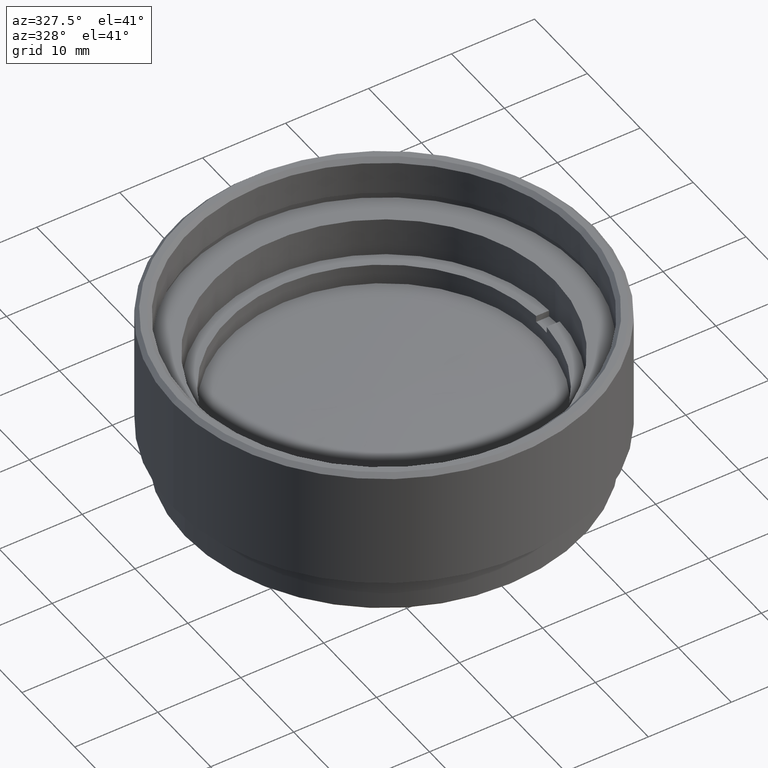
[diagram: clean part render]
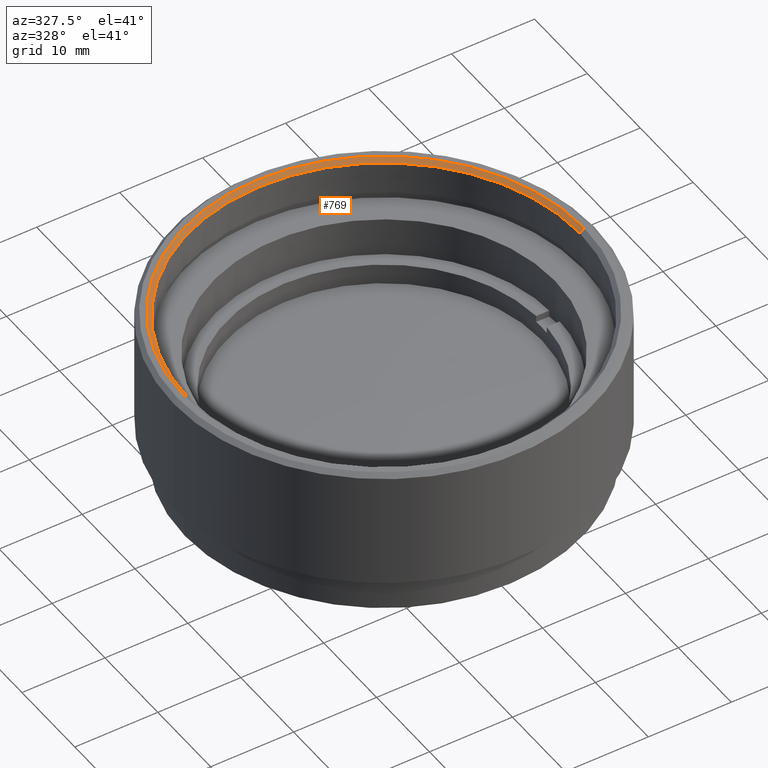
[diagram: same view with one face highlighted and labeled with its STEP entity id]
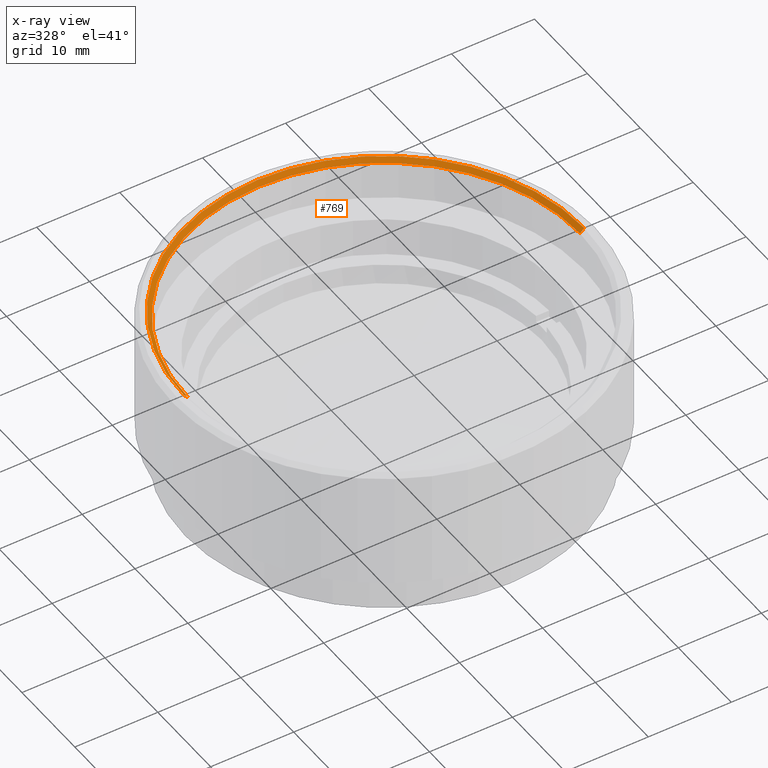
[diagram: x-ray of the same camera — body ghosted, the highlighted face saturated]
A machine part, auxiliary view. The second image highlights one B-rep face of the part: STEP entity #769.
The next image is the same camera in x-ray: the body ghosted, the highlighted face saturated — about 0% of this face is hidden behind the body in this view.
In plain terms, the highlighted conical surface has half-angle 45 deg.
Its self-contained STEP definition (entity closure, byte-faithful):
#38 = DIRECTION ( 'NONE',  ( 0.7071067811865574537, 0.000000000000000000, 0.7071067811865376918 ) ) ;
#150 = CARTESIAN_POINT ( 'NONE',  ( -23.62500000000000000, 2.893228062985622214E-15, 18.99999999999999289 ) ) ;
#173 = CARTESIAN_POINT ( 'NONE',  ( 23.62500000000000000, 0.000000000000000000, 18.99999999999999289 ) ) ;
#184 = ORIENTED_EDGE ( 'NONE', *, *, #1823, .F. ) ;
#195 = DIRECTION ( 'NONE',  ( -0.7071067811865574537, 8.659560562355054885E-17, 0.7071067811865376918 ) ) ;
#234 = ORIENTED_EDGE ( 'NONE', *, *, #808, .T. ) ;
#353 = DIRECTION ( 'NONE',  ( 0.000000000000000000, 0.000000000000000000, 1.000000000000000000 ) ) ;
#358 = CARTESIAN_POINT ( 'NONE',  ( -23.62500000000000000, 2.893228062985622214E-15, 18.99999999999999289 ) ) ;
#436 = CARTESIAN_POINT ( 'NONE',  ( -24.12500000000002132, 2.954460402942992155E-15, 19.50000000000000000 ) ) ;
#444 = AXIS2_PLACEMENT_3D ( 'NONE', #1694, #353, #1669 ) ;
#450 = AXIS2_PLACEMENT_3D ( 'NONE', #850, #828, #835 ) ;
#471 = VERTEX_POINT ( 'NONE', #436 ) ;
#476 = FACE_OUTER_BOUND ( 'NONE', #1395, .T. ) ;
#482 = CARTESIAN_POINT ( 'NONE',  ( 23.62500000000000000, 0.000000000000000000, 18.99999999999999289 ) ) ;
#559 = EDGE_CURVE ( 'NONE', #836, #1684, #845, .T. ) ;
#769 = ADVANCED_FACE ( 'NONE', ( #476 ), #1434, .F. ) ;
#808 = EDGE_CURVE ( 'NONE', #836, #1518, #926, .T. ) ;
#821 = CIRCLE ( 'NONE', #450, 24.12500000000002132 ) ;
#828 = DIRECTION ( 'NONE',  ( -0.000000000000000000, -0.000000000000000000, -1.000000000000000000 ) ) ;
#835 = DIRECTION ( 'NONE',  ( 1.000000000000000000, 0.000000000000000000, 0.000000000000000000 ) ) ;
#836 = VERTEX_POINT ( 'NONE', #482 ) ;
#845 = CIRCLE ( 'NONE', #1658, 23.62500000000000000 ) ;
#850 = CARTESIAN_POINT ( 'NONE',  ( 0.000000000000000000, 0.000000000000000000, 19.50000000000000000 ) ) ;
#926 = LINE ( 'NONE', #173, #1245 ) ;
#1184 = VECTOR ( 'NONE', #195, 999.9999999999998863 ) ;
#1245 = VECTOR ( 'NONE', #38, 999.9999999999998863 ) ;
#1292 = ORIENTED_EDGE ( 'NONE', *, *, #559, .F. ) ;
#1395 = EDGE_LOOP ( 'NONE', ( #184, #1292, #234, #1491 ) ) ;
#1434 = CONICAL_SURFACE ( 'NONE', #444, 23.62500000000000000, 0.7853981633974621568 ) ;
#1453 = CARTESIAN_POINT ( 'NONE',  ( 24.12500000000002132, 0.000000000000000000, 19.50000000000000000 ) ) ;
#1491 = ORIENTED_EDGE ( 'NONE', *, *, #1556, .F. ) ;
#1518 = VERTEX_POINT ( 'NONE', #1453 ) ;
#1533 = LINE ( 'NONE', #358, #1184 ) ;
#1555 = CARTESIAN_POINT ( 'NONE',  ( 0.000000000000000000, 0.000000000000000000, 18.99999999999999289 ) ) ;
#1556 = EDGE_CURVE ( 'NONE', #471, #1518, #821, .T. ) ;
#1583 = DIRECTION ( 'NONE',  ( 1.000000000000000000, 0.000000000000000000, 0.000000000000000000 ) ) ;
#1658 = AXIS2_PLACEMENT_3D ( 'NONE', #1555, #1743, #1583 ) ;
#1669 = DIRECTION ( 'NONE',  ( 1.000000000000000000, 0.000000000000000000, 0.000000000000000000 ) ) ;
#1684 = VERTEX_POINT ( 'NONE', #150 ) ;
#1694 = CARTESIAN_POINT ( 'NONE',  ( 0.000000000000000000, 0.000000000000000000, 18.99999999999999289 ) ) ;
#1743 = DIRECTION ( 'NONE',  ( 0.000000000000000000, 0.000000000000000000, 1.000000000000000000 ) ) ;
#1823 = EDGE_CURVE ( 'NONE', #1684, #471, #1533, .T. ) ;